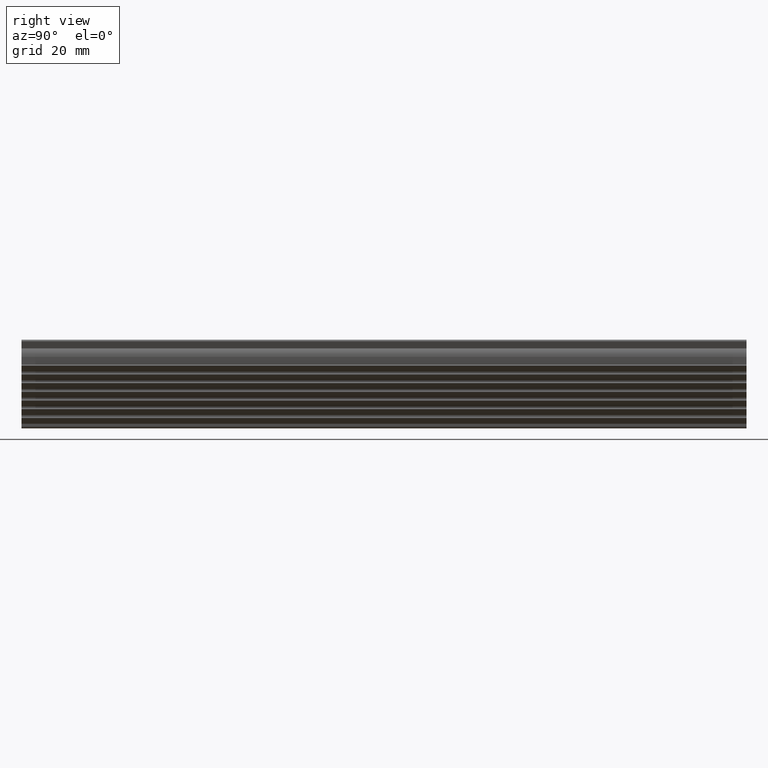
[diagram: clean part render]
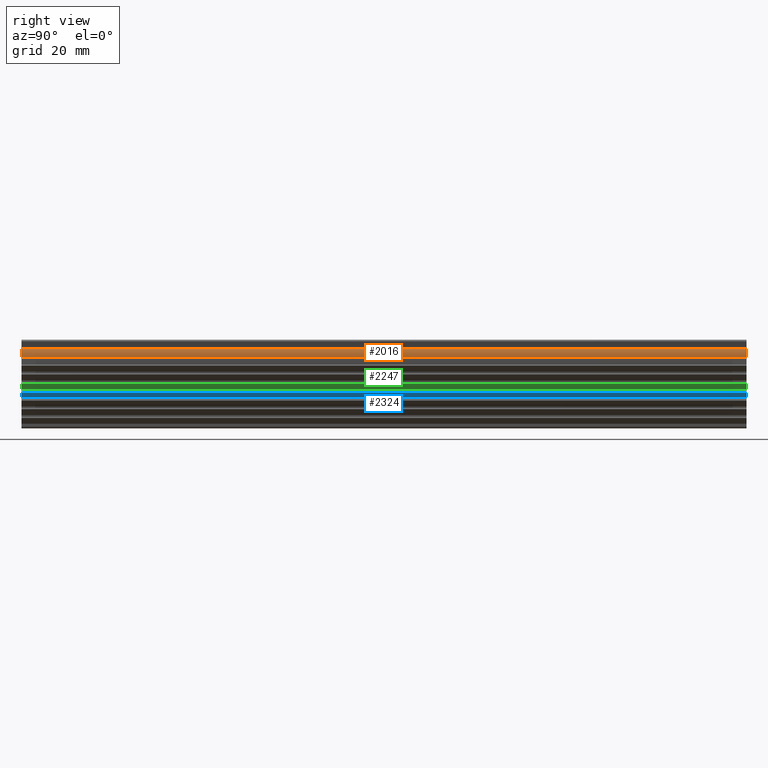
[diagram: same view with three faces highlighted in distinct colors, each labeled with its STEP entity id]
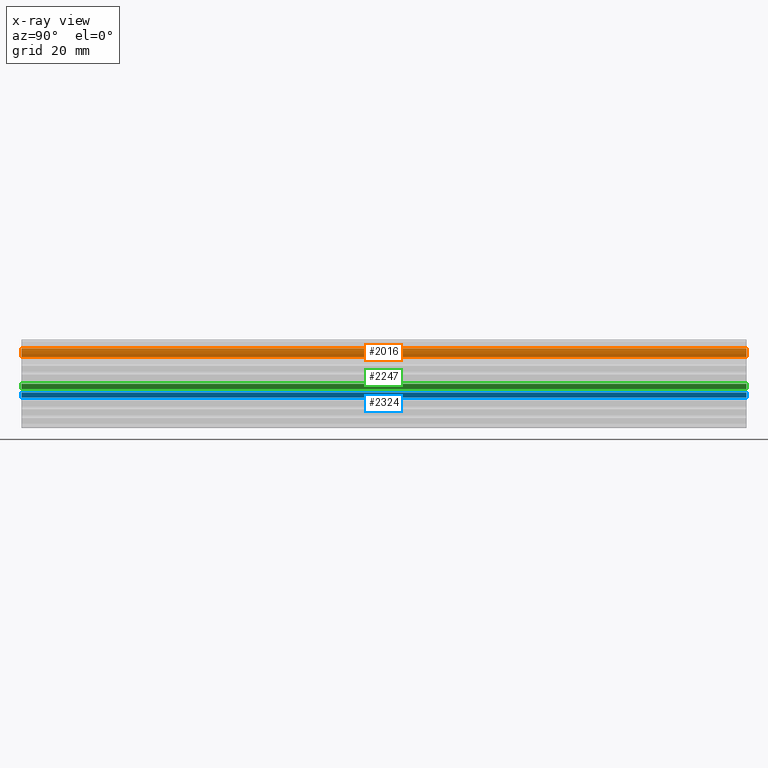
[diagram: x-ray of the same camera — body ghosted, the three highlighted faces saturated]
A machine part, right view with three faces highlighted in distinct colors.
The next image is the same camera in x-ray (body ghosted, the three faces saturated) — at least one of them is partly hidden behind the body in this view.
Their STEP definitions:

[orange] entity #2016 — the highlighted face is a freeform B-spline surface patch.
#680=CARTESIAN_POINT('',(3.750000000000045,0.0,-3.392795526060240));
#681=VERTEX_POINT('',#680);
#687=CARTESIAN_POINT('',(3.006638285227810,0.0,-1.007077234832750));
#688=VERTEX_POINT('',#687);
#689=CARTESIAN_POINT('',(3.750000000000047,0.0,-3.392795526060240));
#690=CARTESIAN_POINT('',(3.750000000000047,0.0,-2.084125003843264));
#691=CARTESIAN_POINT('',(3.006638285227810,0.0,-1.007077234832750));
#699=(BOUNDED_CURVE()B_SPLINE_CURVE(2,(#689,#690,#691),.UNSPECIFIED.,.F.,.U.)CURVE()GEOMETRIC_REPRESENTATION_ITEM()QUASI_UNIFORM_CURVE()RATIONAL_B_SPLINE_CURVE((1.0,0.954727478270743,1.0))REPRESENTATION_ITEM(''));
#700=EDGE_CURVE('',#681,#688,#699,.T.);
#960=CARTESIAN_POINT('',(3.006638285227810,200.0,-1.007077234832750));
#961=VERTEX_POINT('',#960);
#967=CARTESIAN_POINT('',(3.750000000000045,200.0,-3.392795526060240));
#968=VERTEX_POINT('',#967);
#969=CARTESIAN_POINT('',(3.750000000000047,200.0,-3.392795526060240));
#970=CARTESIAN_POINT('',(3.750000000000047,200.000000000000030,-2.084125003843264));
#971=CARTESIAN_POINT('',(3.006638285227834,200.0,-1.007077234832732));
#979=(BOUNDED_CURVE()B_SPLINE_CURVE(2,(#969,#970,#971),.UNSPECIFIED.,.F.,.U.)CURVE()GEOMETRIC_REPRESENTATION_ITEM()QUASI_UNIFORM_CURVE()RATIONAL_B_SPLINE_CURVE((1.0,0.954727478270743,1.0))REPRESENTATION_ITEM(''));
#980=EDGE_CURVE('',#968,#961,#979,.T.);
#1982=CARTESIAN_POINT('',(3.006638285227810,200.0,-1.007077234832750));
#1983=CARTESIAN_POINT('',(3.006638285227810,0.0,-1.007077234832750));
#1984=QUASI_UNIFORM_CURVE('',1,(#1982,#1983),.UNSPECIFIED.,.F.,.U.);
#1985=EDGE_CURVE('',#961,#688,#1984,.T.);
#1992=CARTESIAN_POINT('',(2.934662269888341,205.0,-0.906018230282709));
#1993=CARTESIAN_POINT('',(2.934662269888341,-5.125000000000001,-0.906018230282709));
#1994=CARTESIAN_POINT('',(3.791181111654485,205.000000000000090,-2.071794921302347));
#1995=CARTESIAN_POINT('',(3.791181111654485,-5.124999999999999,-2.071794921302347));
#1996=CARTESIAN_POINT('',(3.748140605492762,204.999999999999970,-3.517757346282490));
#1997=CARTESIAN_POINT('',(3.748140605492762,-5.125000000000000,-3.517757346282490));
#2005=(BOUNDED_SURFACE()B_SPLINE_SURFACE(1,2,((#1992,#1994,#1996),(#1993,#1995,#1997)),.UNSPECIFIED.,.F.,.F.,.U.)B_SPLINE_SURFACE_WITH_KNOTS((2,2),(3,3),(0.0,210.125000000000000),(0.0,2.812130022591328),.UNSPECIFIED.)GEOMETRIC_REPRESENTATION_ITEM()RATIONAL_B_SPLINE_SURFACE(((0.999389148505978,0.941328695049059,0.991824915871479),(0.999389148505978,0.941328695049059,0.991824915871479)))REPRESENTATION_ITEM('')SURFACE());
#2006=ORIENTED_EDGE('',*,*,#700,.F.);
#2007=CARTESIAN_POINT('',(3.750000000000045,200.0,-3.392795526060240));
#2008=CARTESIAN_POINT('',(3.750000000000045,0.0,-3.392795526060240));
#2009=QUASI_UNIFORM_CURVE('',1,(#2007,#2008),.UNSPECIFIED.,.F.,.U.);
#2010=EDGE_CURVE('',#968,#681,#2009,.T.);
#2011=ORIENTED_EDGE('',*,*,#2010,.F.);
#2012=ORIENTED_EDGE('',*,*,#980,.T.);
#2013=ORIENTED_EDGE('',*,*,#1985,.T.);
#2014=EDGE_LOOP('',(#2006,#2011,#2012,#2013));
#2015=FACE_OUTER_BOUND('',#2014,.T.);
#2016=ADVANCED_FACE('',(#2015),#2005,.T.);

[blue] entity #2324 — the highlighted face is a freeform B-spline surface patch.
#528=CARTESIAN_POINT('',(3.750000000000085,0.0,-14.649621284483120));
#529=VERTEX_POINT('',#528);
#535=CARTESIAN_POINT('',(5.187489250129180,0.0,-13.212132034355980));
#536=VERTEX_POINT('',#535);
#537=CARTESIAN_POINT('',(5.187489250129180,0.0,-13.212132034355980));
#538=CARTESIAN_POINT('',(3.750000000000085,0.0,-14.649621284483120));
#539=QUASI_UNIFORM_CURVE('',1,(#537,#538),.UNSPECIFIED.,.F.,.U.);
#540=EDGE_CURVE('',#536,#529,#539,.T.);
#1110=CARTESIAN_POINT('',(5.187489250129180,200.0,-13.212132034355980));
#1111=VERTEX_POINT('',#1110);
#1127=CARTESIAN_POINT('',(3.750000000000085,200.0,-14.649621284483120));
#1128=VERTEX_POINT('',#1127);
#1129=CARTESIAN_POINT('',(5.187489250129180,200.0,-13.212132034355980));
#1130=CARTESIAN_POINT('',(3.750000000000085,200.0,-14.649621284483120));
#1131=QUASI_UNIFORM_CURVE('',1,(#1129,#1130),.UNSPECIFIED.,.F.,.U.);
#1132=EDGE_CURVE('',#1111,#1128,#1131,.T.);
#2299=CARTESIAN_POINT('',(5.187489250129180,200.0,-13.212132034355980));
#2300=CARTESIAN_POINT('',(5.187489250129180,0.0,-13.212132034355980));
#2301=QUASI_UNIFORM_CURVE('',1,(#2299,#2300),.UNSPECIFIED.,.F.,.U.);
#2302=EDGE_CURVE('',#1111,#536,#2301,.T.);
#2309=CARTESIAN_POINT('',(3.678197565090644,-9.989999612361194,-14.721423719392480));
#2310=CARTESIAN_POINT('',(5.259291543664911,-9.989999612361194,-13.140329740820340));
#2311=CARTESIAN_POINT('',(3.678197565090644,209.990004976779200,-14.721423719392480));
#2312=CARTESIAN_POINT('',(5.259291543664911,209.990004976779200,-13.140329740820340));
#2313=B_SPLINE_SURFACE_WITH_KNOTS('',1,1,((#2309,#2311),(#2310,#2312)),.UNSPECIFIED.,.F.,.F.,.U.,(2,2),(2,2),(0.0,2.236004547884660),(0.0,219.980004589140410),.UNSPECIFIED.);
#2314=ORIENTED_EDGE('',*,*,#540,.T.);
#2315=CARTESIAN_POINT('',(3.750000000000085,200.0,-14.649621284483120));
#2316=CARTESIAN_POINT('',(3.750000000000085,0.0,-14.649621284483120));
#2317=QUASI_UNIFORM_CURVE('',1,(#2315,#2316),.UNSPECIFIED.,.F.,.U.);
#2318=EDGE_CURVE('',#1128,#529,#2317,.T.);
#2319=ORIENTED_EDGE('',*,*,#2318,.F.);
#2320=ORIENTED_EDGE('',*,*,#1132,.F.);
#2321=ORIENTED_EDGE('',*,*,#2302,.T.);
#2322=EDGE_LOOP('',(#2314,#2319,#2320,#2321));
#2323=FACE_OUTER_BOUND('',#2322,.T.);
#2324=ADVANCED_FACE('',(#2323),#2313,.F.);

[green] entity #2247 — the highlighted face is a freeform B-spline surface patch.
#566=CARTESIAN_POINT('',(3.750000000000000,0.0,-12.249621284483281));
#567=VERTEX_POINT('',#566);
#573=CARTESIAN_POINT('',(5.187489250129180,0.0,-10.812132034356001));
#574=VERTEX_POINT('',#573);
#575=CARTESIAN_POINT('',(5.187489250129180,0.0,-10.812132034356001));
#576=CARTESIAN_POINT('',(3.750000000000000,0.0,-12.249621284483281));
#577=QUASI_UNIFORM_CURVE('',1,(#575,#576),.UNSPECIFIED.,.F.,.U.);
#578=EDGE_CURVE('',#574,#567,#577,.T.);
#1072=CARTESIAN_POINT('',(5.187489250129180,200.0,-10.812132034356001));
#1073=VERTEX_POINT('',#1072);
#1089=CARTESIAN_POINT('',(3.750000000000000,200.0,-12.249621284483281));
#1090=VERTEX_POINT('',#1089);
#1091=CARTESIAN_POINT('',(5.187489250129180,200.0,-10.812132034356001));
#1092=CARTESIAN_POINT('',(3.750000000000000,200.0,-12.249621284483281));
#1093=QUASI_UNIFORM_CURVE('',1,(#1091,#1092),.UNSPECIFIED.,.F.,.U.);
#1094=EDGE_CURVE('',#1073,#1090,#1093,.T.);
#2222=CARTESIAN_POINT('',(5.187489250129180,200.0,-10.812132034356001));
#2223=CARTESIAN_POINT('',(5.187489250129180,0.0,-10.812132034356001));
#2224=QUASI_UNIFORM_CURVE('',1,(#2222,#2223),.UNSPECIFIED.,.F.,.U.);
#2225=EDGE_CURVE('',#1073,#574,#2224,.T.);
#2232=CARTESIAN_POINT('',(3.678197365901438,-9.989999612361194,-12.321423918581781));
#2233=CARTESIAN_POINT('',(5.259291768558388,-9.989999612361194,-10.740329515926939));
#2234=CARTESIAN_POINT('',(3.678197365901437,209.990004976779200,-12.321423918581781));
#2235=CARTESIAN_POINT('',(5.259291768558388,209.990004976779200,-10.740329515926939));
#2236=B_SPLINE_SURFACE_WITH_KNOTS('',1,1,((#2232,#2234),(#2233,#2235)),.UNSPECIFIED.,.F.,.F.,.U.,(2,2),(2,2),(0.0,2.236005147628160),(0.0,219.980004589140410),.UNSPECIFIED.);
#2237=ORIENTED_EDGE('',*,*,#578,.T.);
#2238=CARTESIAN_POINT('',(3.750000000000000,200.0,-12.249621284483281));
#2239=CARTESIAN_POINT('',(3.750000000000000,0.0,-12.249621284483281));
#2240=QUASI_UNIFORM_CURVE('',1,(#2238,#2239),.UNSPECIFIED.,.F.,.U.);
#2241=EDGE_CURVE('',#1090,#567,#2240,.T.);
#2242=ORIENTED_EDGE('',*,*,#2241,.F.);
#2243=ORIENTED_EDGE('',*,*,#1094,.F.);
#2244=ORIENTED_EDGE('',*,*,#2225,.T.);
#2245=EDGE_LOOP('',(#2237,#2242,#2243,#2244));
#2246=FACE_OUTER_BOUND('',#2245,.T.);
#2247=ADVANCED_FACE('',(#2246),#2236,.F.);